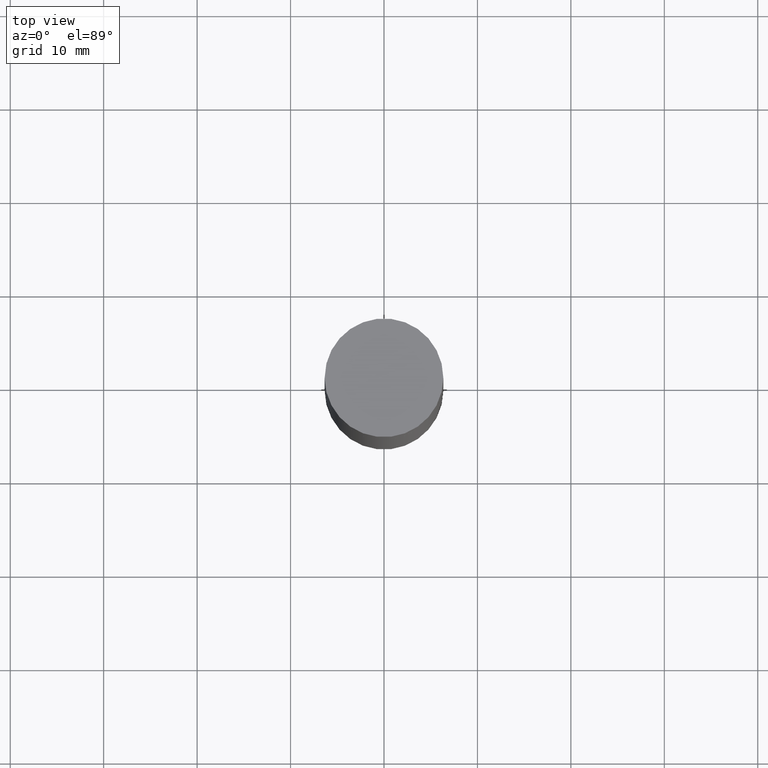
[diagram: clean part render]
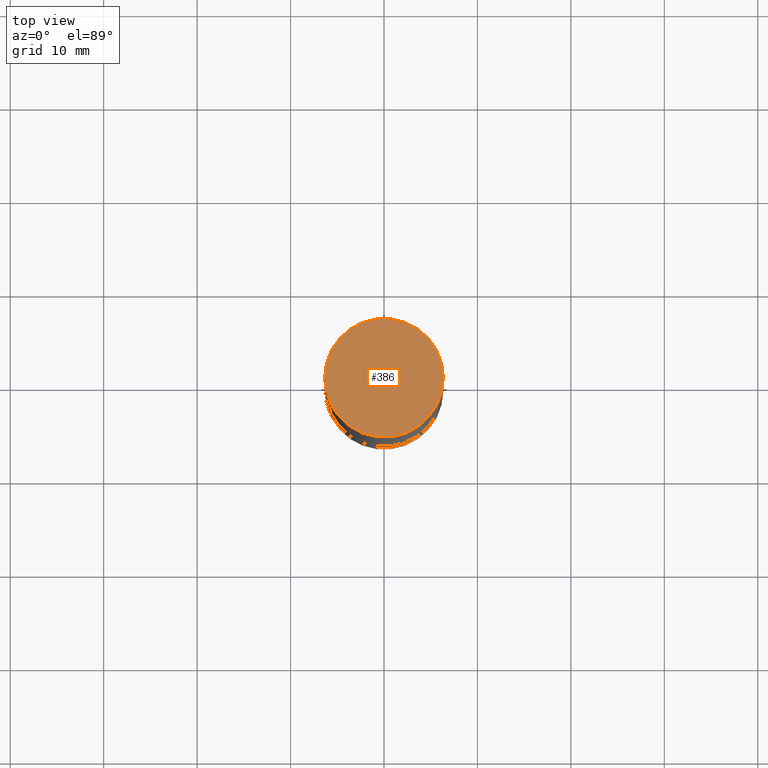
[diagram: same view with one face highlighted and labeled with its STEP entity id]
A machine part, top view. The second image highlights one B-rep face of the part: STEP entity #386.
In plain terms, the highlighted planar face has unit normal (0, 0, 1).
Its self-contained STEP definition (entity closure, byte-faithful):
#53 = ORIENTED_EDGE ( 'NONE', *, *, #482, .T. ) ;
#62 = CARTESIAN_POINT ( 'NONE',  ( 7.336406418555409790E-29, 2.113609062914567177E-18, 1.092739197465705287E-15 ) ) ;
#65 = DIRECTION ( 'NONE',  ( 1.000000000000000000, -6.982962677686266711E-15, 0.000000000000000000 ) ) ;
#71 = CARTESIAN_POINT ( 'NONE',  ( -0.2500000000000000000, 6.257098548958748880E-16, 1.092739197465709232E-15 ) ) ;
#85 = CARTESIAN_POINT ( 'NONE',  ( 0.2500000000000000000, -1.743627060358652092E-15, 1.092739197465705287E-15 ) ) ;
#95 = DIRECTION ( 'NONE',  ( -1.000000000000000000, 6.982962677686265922E-15, -9.839502134516470631E-33 ) ) ;
#106 = DIRECTION ( 'NONE',  ( 2.445468806185136597E-29, 3.492890411551752677E-15, 1.000000000000000000 ) ) ;
#170 = DIRECTION ( 'NONE',  ( 2.445468806185136597E-29, 3.492890411551752677E-15, 1.000000000000000000 ) ) ;
#195 = CIRCLE ( 'NONE', #360, 0.2500000000000000000 ) ;
#203 = DIRECTION ( 'NONE',  ( 2.438088387897959769E-29, 3.492890411551753071E-15, 1.000000000000000000 ) ) ;
#208 = EDGE_LOOP ( 'NONE', ( #336, #53 ) ) ;
#251 = AXIS2_PLACEMENT_3D ( 'NONE', #297, #106, #404 ) ;
#273 = VERTEX_POINT ( 'NONE', #85 ) ;
#297 = CARTESIAN_POINT ( 'NONE',  ( 7.336406418555409790E-29, 2.113609062914567177E-18, 1.092739197465705287E-15 ) ) ;
#336 = ORIENTED_EDGE ( 'NONE', *, *, #393, .T. ) ;
#360 = AXIS2_PLACEMENT_3D ( 'NONE', #62, #170, #65 ) ;
#386 = ADVANCED_FACE ( 'NONE', ( #677 ), #408, .T. ) ;
#393 = EDGE_CURVE ( 'NONE', #273, #506, #562, .T. ) ;
#404 = DIRECTION ( 'NONE',  ( 1.000000000000000000, -6.982962677686266711E-15, 0.000000000000000000 ) ) ;
#408 = PLANE ( 'NONE',  #656 ) ;
#482 = EDGE_CURVE ( 'NONE', #506, #273, #195, .T. ) ;
#506 = VERTEX_POINT ( 'NONE', #71 ) ;
#562 = CIRCLE ( 'NONE', #251, 0.2500000000000000000 ) ;
#570 = CARTESIAN_POINT ( 'NONE',  ( 1.745740669421639647E-15, 0.2500000000000000000, 5.463695987328526437E-16 ) ) ;
#656 = AXIS2_PLACEMENT_3D ( 'NONE', #570, #203, #95 ) ;
#677 = FACE_OUTER_BOUND ( 'NONE', #208, .T. ) ;